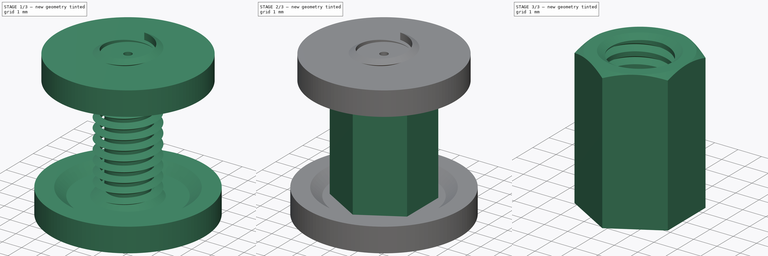
[diagram: build sequence overview — one tinted view per stage of 3, left to right]
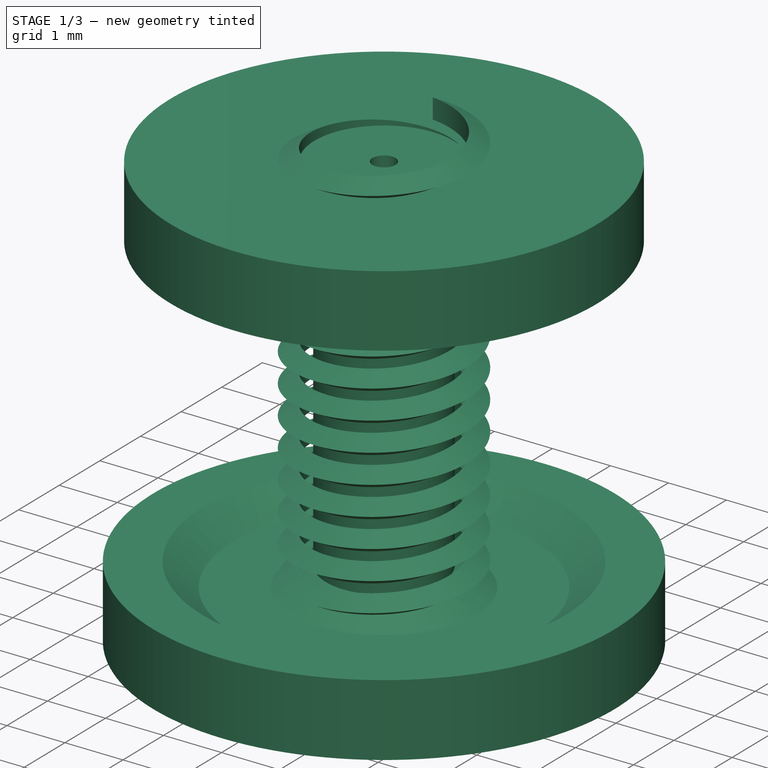
[diagram: stage 1 of 3 — iso view after this stage's code; geometry added in this stage tinted green]
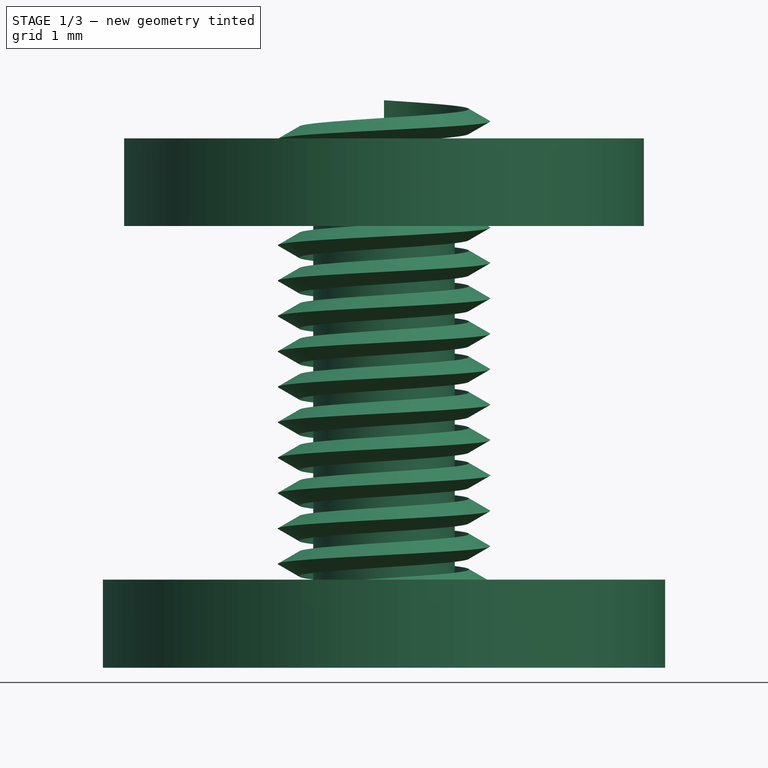
[diagram: stage 1 of 3 — front view after this stage's code; geometry added in this stage tinted green]
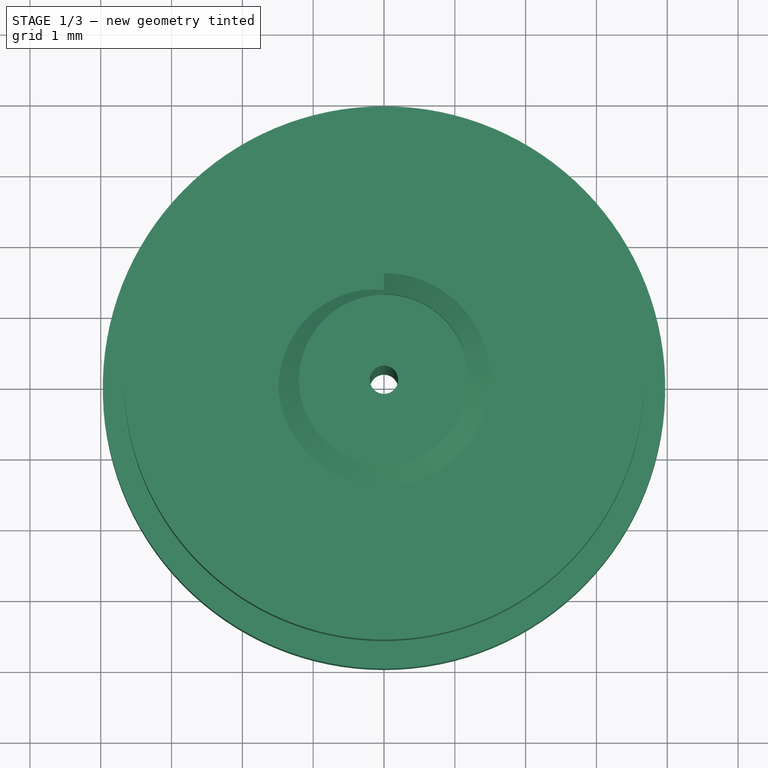
[diagram: stage 1 of 3 — top view after this stage's code; geometry added in this stage tinted green]
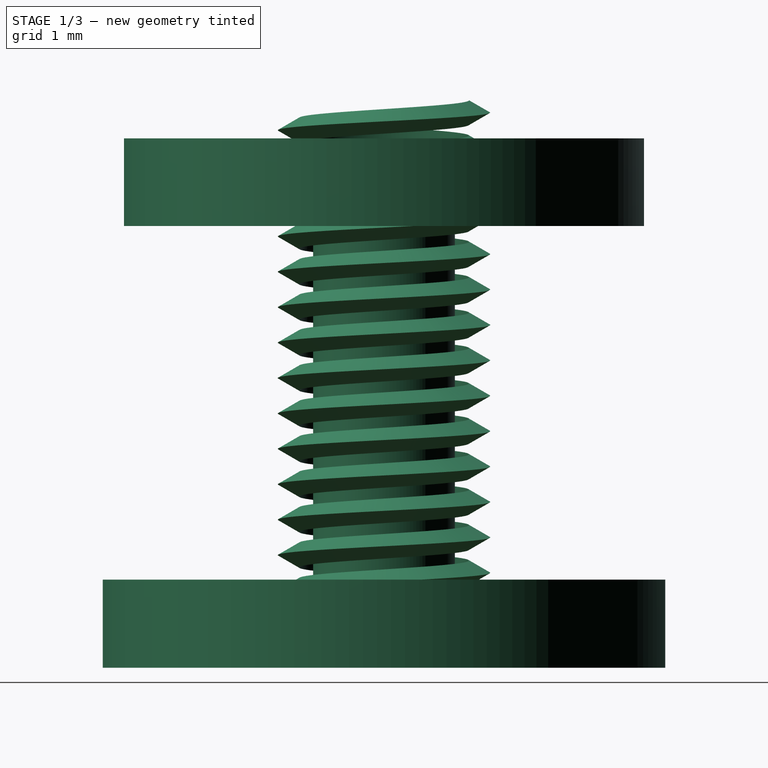
[diagram: stage 1 of 3 — right view after this stage's code; geometry added in this stage tinted green]
FCSTD DOCUMENT  (FreeCAD 0.14R3703 (Git))
Label: ecrouM3
License: CC-BY 3.0
LicenseURL: http://creativecommons.org/licenses/by/3.0/
objects: Sketcher::SketchObject×3, Part::Cut×2, PartDesign::Pad×1, Part::Helix×1, Part::Sweep×1, PartDesign::Revolution×1
note: 11 computed .brp shape members not serialized (recipe doc carries the construction recipe); baked Part::Feature solids carry a one-line shape summary decoded from their .brp

FEATURE [Sketcher::SketchObject] Sketch001
  Placement = pos=(0,0,0) rot=(0.57735,0.57735,0.57735;2.0944rad)
  sketch-geometry (3):
    g0: LineSegment StartX=1.2 StartY=0.173205 StartZ=0 EndX=1.2 EndY=-0.173205 EndZ=0
    g1: LineSegment StartX=1.2 StartY=-0.173205 StartZ=0 EndX=1.5 EndY=0 EndZ=0
    g2: LineSegment StartX=1.5 StartY=0 StartZ=0 EndX=1.2 EndY=0.173205 EndZ=0
  constraints (9):
    c: Vertical(g0)
    c: Coincident(g0,g1)
    c: Coincident(g1,g2)
    c: Coincident(g2,g0)
    c: PointOnObject(g1,g-1)
    c: DistanceX(g-1,g1) = 1.5
    c: DistanceX(g-1,g0) = 1.2
    c: Equal(g1,g2)
    c: Angle(g2,g1) = 1.0472
FEATURE [Part::Helix] Helix  label="Helice"
  Angle = 0
  Height = 7
  LocalCoord = 0
  Pitch = 0.5
  Placement = pos=(0,0,0) rot=(0,0,1;1.5708rad)
  Radius = 1.25
  Style = 1
FEATURE [Part::Sweep] Sweep
  Frenet = true
  Sections = -> [Sketch001]
  Solid = true
  Spine = -> Helix [Edge1]
  Transition = 1
FEATURE [Sketcher::SketchObject] Sketch002  label="Chanfrein"
  Placement = pos=(0,0,0) rot=(0.57735,0.57735,0.57735;2.0944rad)
  sketch-geometry (14):
    g0: LineSegment StartX=3.67088 StartY=5.39785 StartZ=0 EndX=3.02955 EndY=5.39785 EndZ=0
    g1: LineSegment StartX=3.02955 StartY=5.39785 StartZ=0 EndX=1.9 EndY=6.05 EndZ=0
    g2: LineSegment StartX=1.9 StartY=6.05 StartZ=0 EndX=1.6 EndY=6.05 EndZ=0
    g3: LineSegment StartX=1.6 StartY=6.05 StartZ=0 EndX=1 EndY=5.70359 EndZ=0
    g4: LineSegment StartX=1 StartY=5.70359 StartZ=0 EndX=1 EndY=0.34641 EndZ=0
    g5: LineSegment StartX=1 StartY=0.34641 StartZ=0 EndX=1.6 EndY=0 EndZ=0
    g6: LineSegment StartX=1.6 StartY=0 StartZ=0 EndX=2.61571 EndY=0 EndZ=0
    g7: LineSegment StartX=2.61571 StartY=0 StartZ=0 EndX=3.12664 EndY=0.403201 EndZ=0
    g8: LineSegment StartX=3.12664 StartY=0.403201 StartZ=0 EndX=3.97078 EndY=0.403201 EndZ=0
    g9: LineSegment StartX=3.97078 StartY=0.403201 StartZ=0 EndX=3.97078 EndY=-0.84079 EndZ=0
    g10: LineSegment StartX=3.97078 StartY=-0.84079 StartZ=0 EndX=0.2 EndY=-0.84079 EndZ=0
    g11: LineSegment StartX=0.2 StartY=-0.84079 StartZ=0 EndX=0.2 EndY=6.63426 EndZ=0
    g12: LineSegment StartX=0.2 StartY=6.63426 StartZ=0 EndX=3.67088 EndY=6.63426 EndZ=0
    g13: LineSegment StartX=3.67088 StartY=6.63426 StartZ=0 EndX=3.67088 EndY=5.39785 EndZ=0
  constraints (34):
    c: Horizontal(g0)
    c: Coincident(g0,g1)
    c: Coincident(g1,g2)
    c: Horizontal(g2)
    c: Coincident(g2,g3)
    c: Coincident(g3,g4)
    c: Vertical(g4)
    c: Coincident(g4,g5)
    c: Coincident(g5,g6)
    c: Horizontal(g6)
    c: Coincident(g6,g7)
    c: Coincident(g7,g8)
    c: Horizontal(g8)
    c: Coincident(g8,g9)
    c: Vertical(g9)
    c: Coincident(g9,g10)
    c: Horizontal(g10)
    c: Coincident(g10,g11)
    c: Vertical(g11)
    c: Coincident(g11,g12)
    c: Horizontal(g12)
    c: Coincident(g12,g13)
    c: Coincident(g13,g0)
    c: Vertical(g13)
    c: DistanceY(g-1,g1) = 6.05
    c: Angle(g-2,g3) = 2.0944
    c: DistanceX(g-1,g11) = 0.2
    c: DistanceX(g3) = 1
    c: DistanceX(g-1,g2) = 1.6
    c: DistanceX(g-1,g1) = 1.9
    c: Angle(g1,g-2) = 2.0944
    c: Angle(g5,g-2) = 2.0944
    c: DistanceX(g-1,g5) = 1.6
    c: PointOnObject(g6,g-1)
FEATURE [PartDesign::Revolution] Revolution
  Angle = 360
  Axis = (0,0,1)
  Base = (0,0,0)
  Placement = pos=(0,0,0) rot=(0.57735,0.57735,0.57735;2.0944rad)
  ReferenceAxis = -> Sketch002 [V_Axis]
  Reversed = true
  Sketch = -> Sketch002
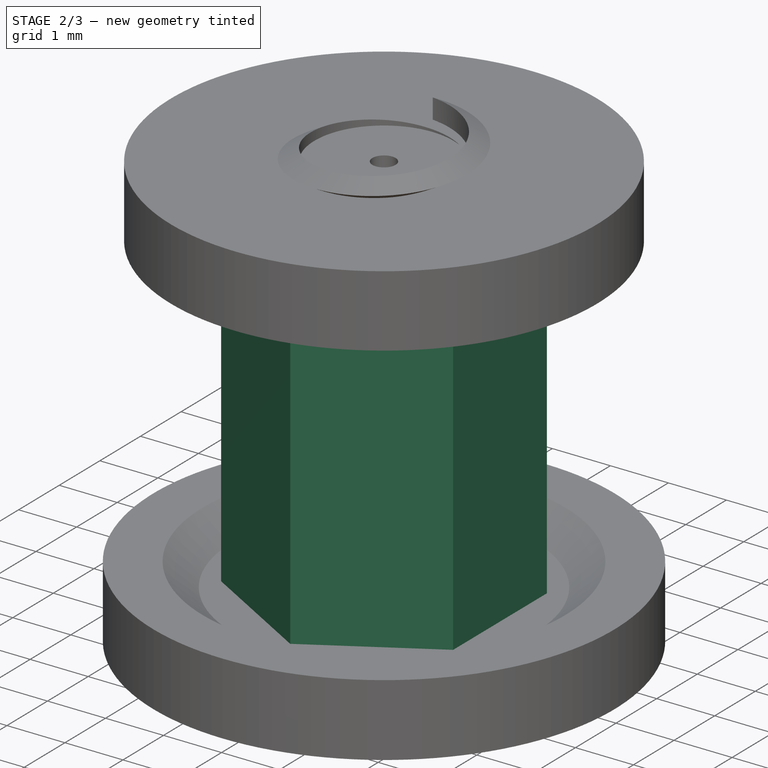
[diagram: stage 2 of 3 — iso view after this stage's code; geometry added in this stage tinted green]
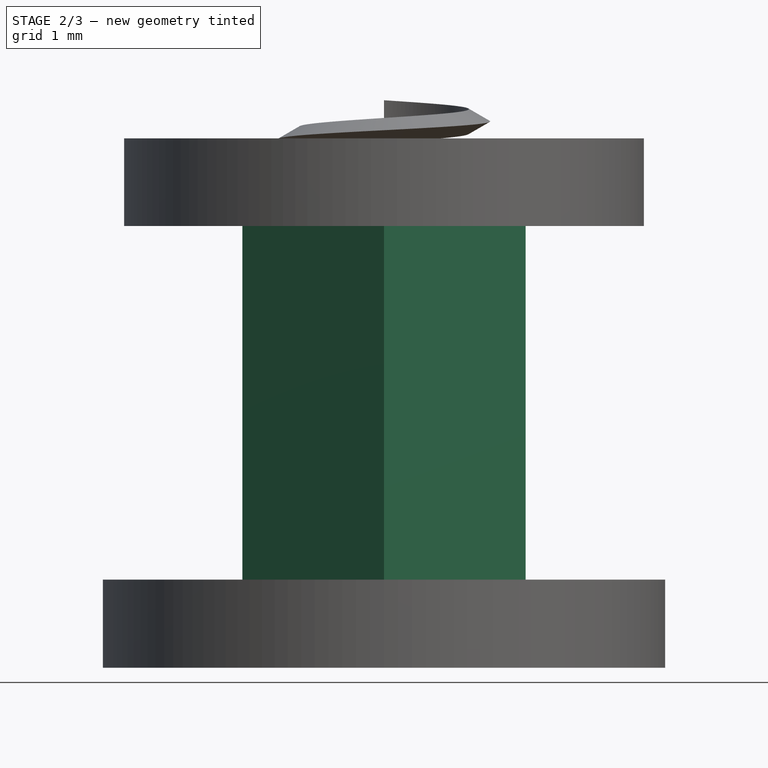
[diagram: stage 2 of 3 — front view after this stage's code; geometry added in this stage tinted green]
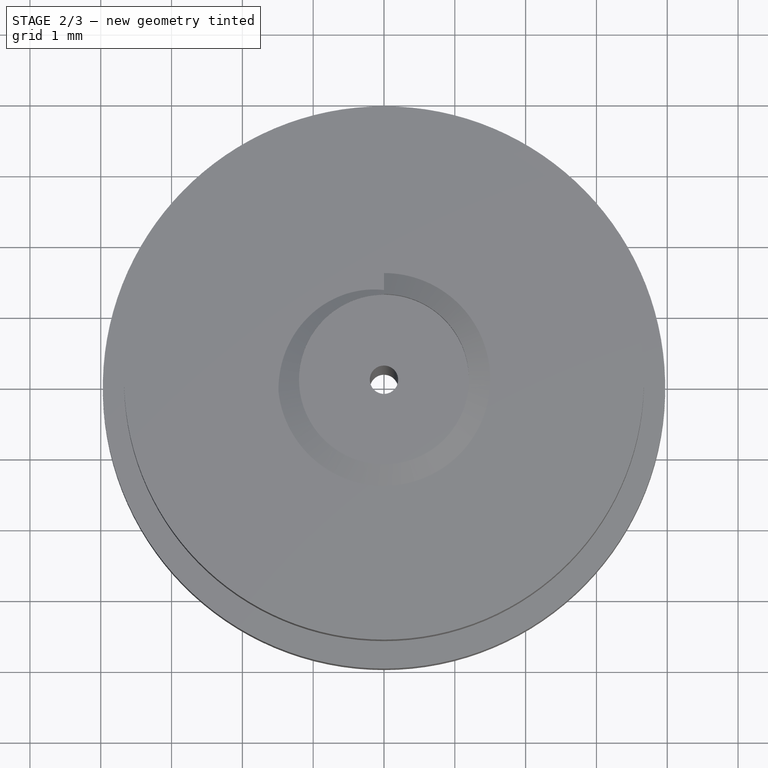
[diagram: stage 2 of 3 — top view after this stage's code; geometry added in this stage tinted green]
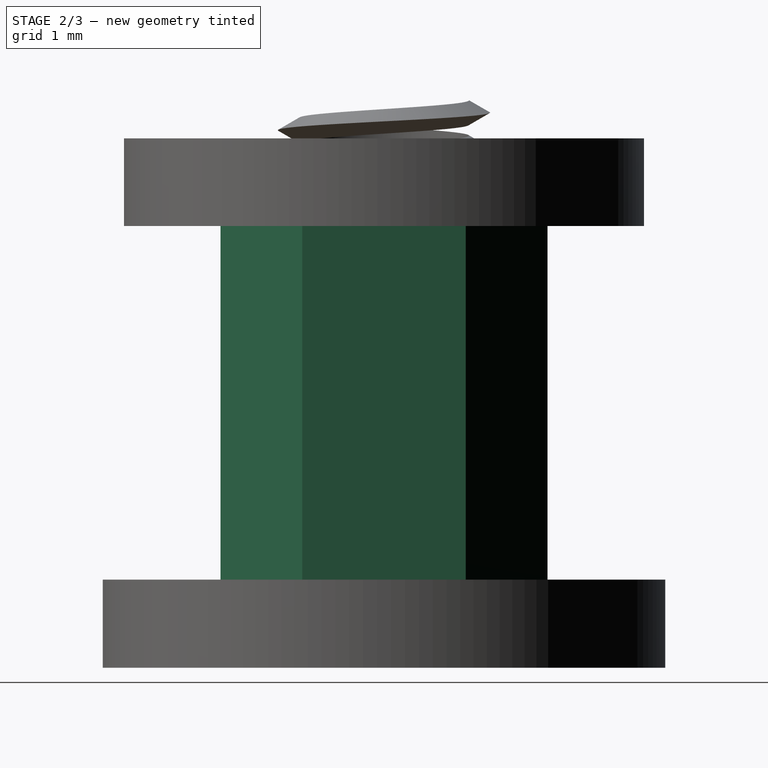
[diagram: stage 2 of 3 — right view after this stage's code; geometry added in this stage tinted green]
FEATURE [Sketcher::SketchObject] Sketch
  sketch-geometry (7):
    g0: LineSegment StartX=-2 StartY=1.1547 StartZ=0 EndX=-2 EndY=-1.1547 EndZ=0
    g1: LineSegment StartX=-2 StartY=-1.1547 StartZ=0 EndX=0 EndY=-2.3094 EndZ=0
    g2: LineSegment StartX=0 StartY=-2.3094 StartZ=0 EndX=2 EndY=-1.1547 EndZ=0
    g3: LineSegment StartX=2 StartY=-1.1547 StartZ=0 EndX=2 EndY=1.1547 EndZ=0
    g4: LineSegment StartX=2 StartY=1.1547 StartZ=0 EndX=0 EndY=2.3094 EndZ=0
    g5: LineSegment StartX=0 StartY=2.3094 StartZ=0 EndX=-2 EndY=1.1547 EndZ=0
    g6: Circle CenterX=0 CenterY=0 CenterZ=0 NormalX=0 NormalY=0 NormalZ=1 Radius=1.2295
  constraints (19):
    c: Vertical(g0)
    c: Coincident(g0,g1)
    c: PointOnObject(g1,g-2)
    c: Coincident(g1,g2)
    c: Coincident(g2,g3)
    c: Vertical(g3)
    c: Coincident(g3,g4)
    c: PointOnObject(g4,g-2)
    c: Coincident(g4,g5)
    c: Coincident(g5,g0)
    c: Equal(g5,g4)
    c: Equal(g4,g3)
    c: Equal(g3,g2)
    c: Equal(g2,g1)
    c: Equal(g1,g0)
    c: Angle(g5,g4) = 2.0944
    c: Symmetric(g3,g2,g-1)
    c: Radius(g6) = 1.2295
    c: DistanceX(g3,g0) = -4
FEATURE [PartDesign::Pad] Pad
  Length = 6
  Length2 = 100
  Sketch = -> Sketch
  Type = 0
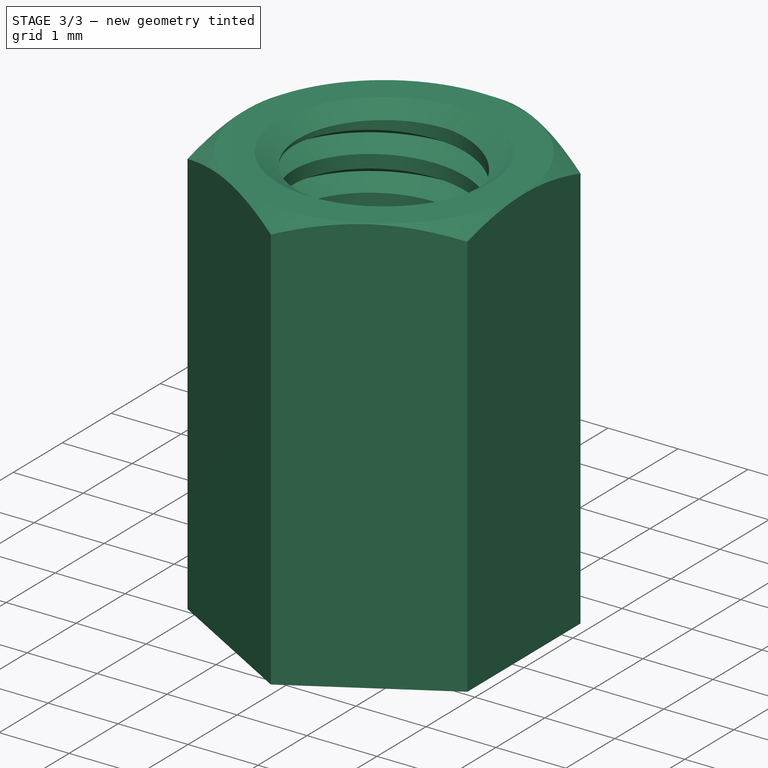
[diagram: stage 3 of 3 — iso view after this stage's code; geometry added in this stage tinted green]
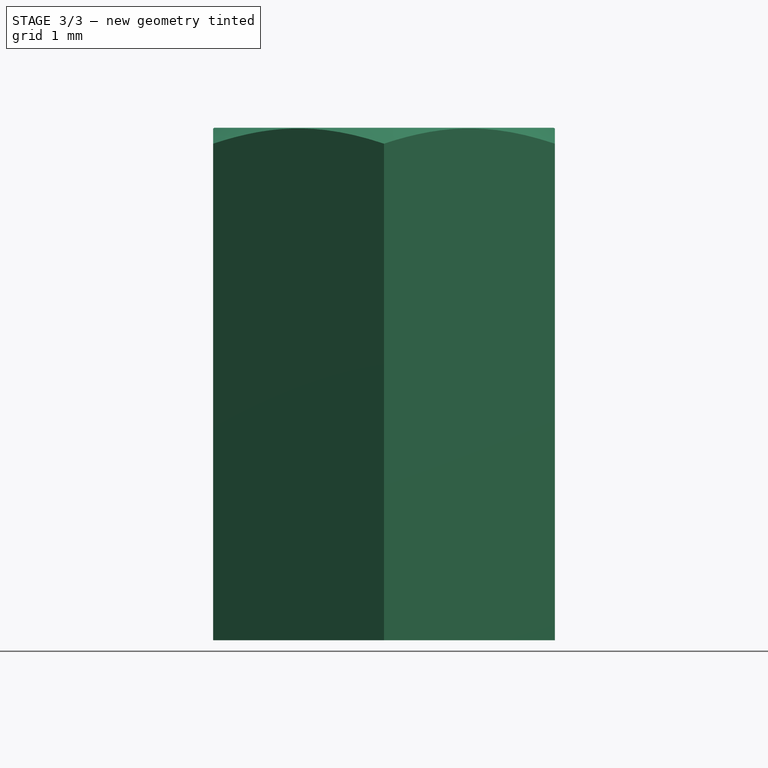
[diagram: stage 3 of 3 — front view after this stage's code; geometry added in this stage tinted green]
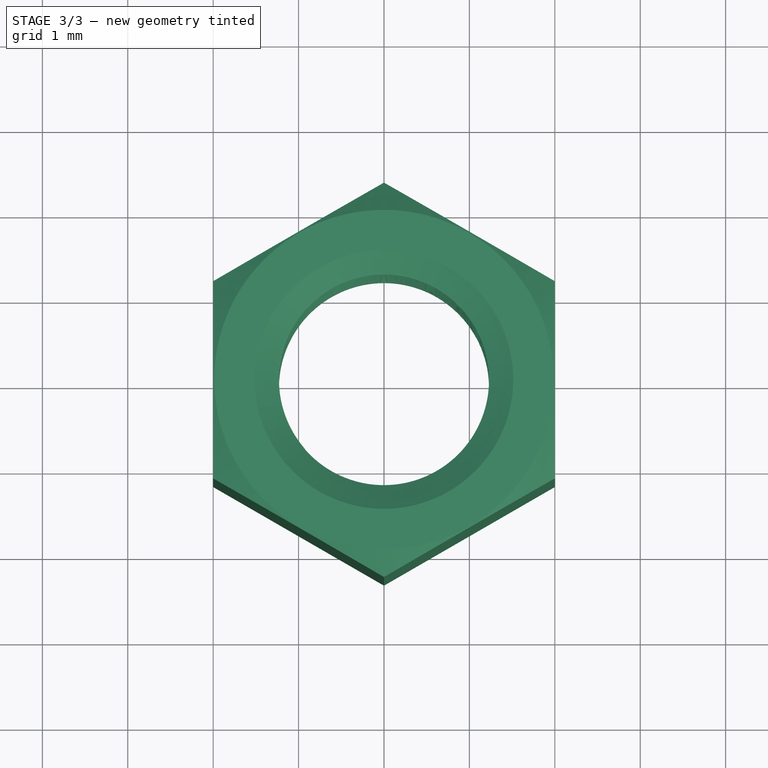
[diagram: stage 3 of 3 — top view after this stage's code; geometry added in this stage tinted green]
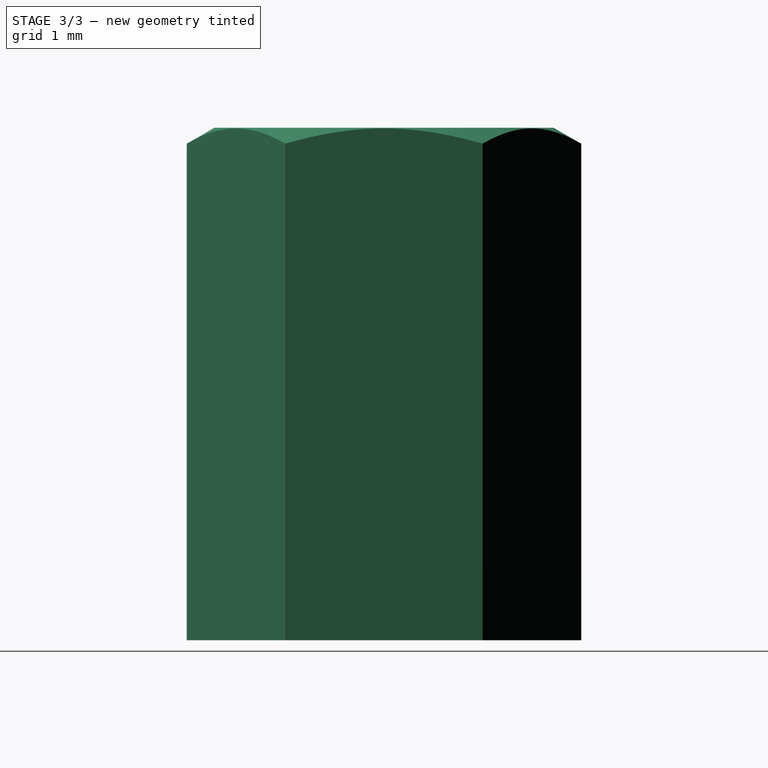
[diagram: stage 3 of 3 — right view after this stage's code; geometry added in this stage tinted green]
FEATURE [Part::Cut] Cut
  Base = -> Pad
  Tool = -> Sweep
FEATURE [Part::Cut] Cut001  label="ecrouM3"
  Base = -> Cut
  Tool = -> Revolution
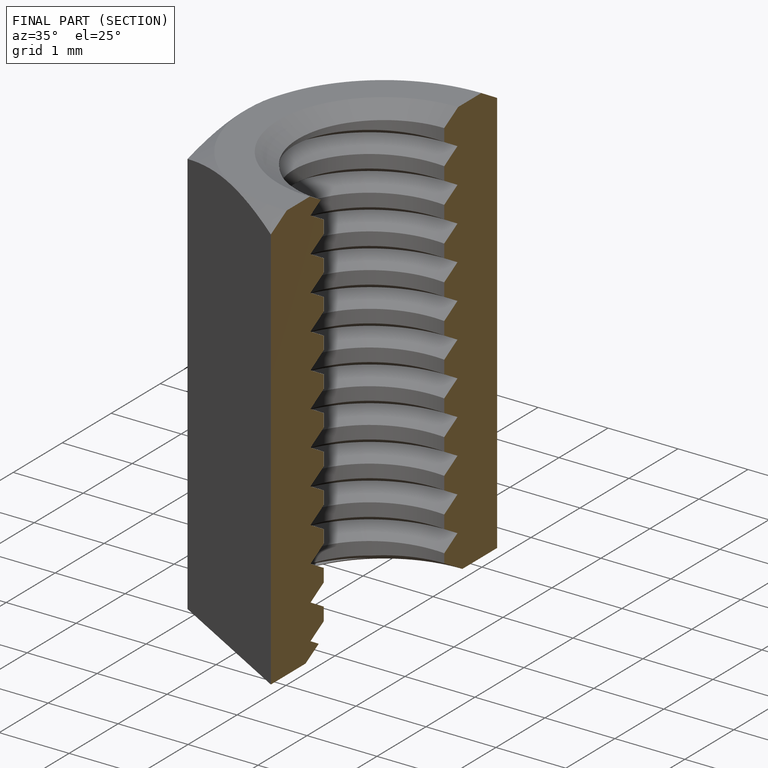
[diagram: finished part — half-section view (interior)]
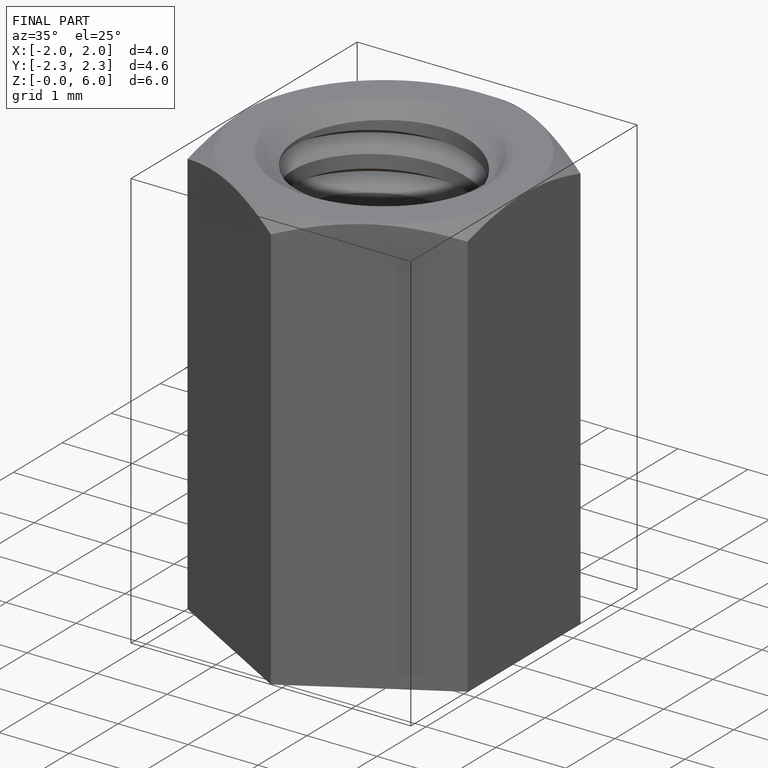
[diagram: finished part — iso view with bounding-box wireframe]
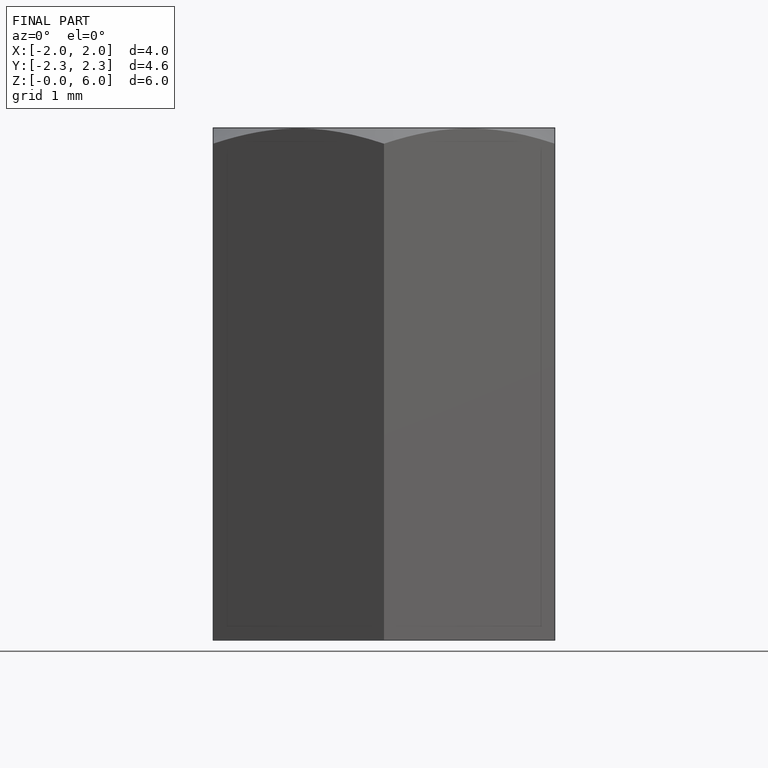
[diagram: finished part — front view with bounding-box wireframe]
